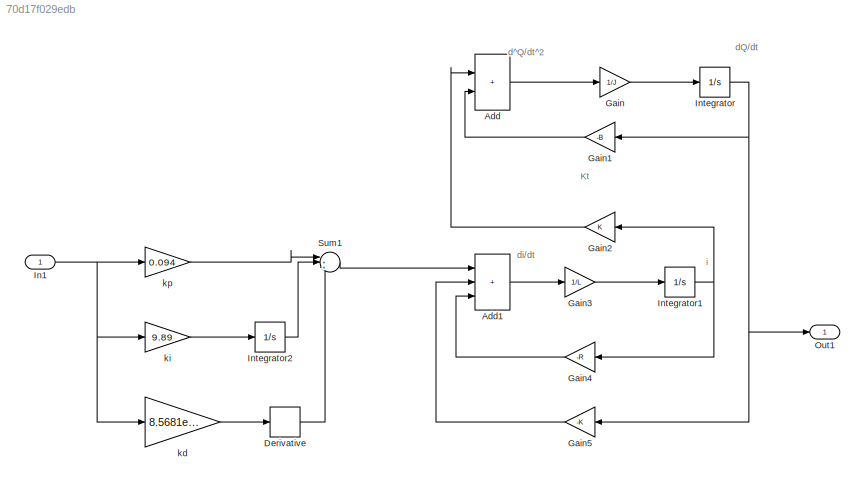
MODEL slx_70d17f029edb
KIND model
CONFIG AbsTol = auto
CONFIG EnableMultiTasking = off
CONFIG FixedStep = auto
CONFIG MaxStep = auto
CONFIG MinStep = auto
CONFIG RelTol = 1e-3
CONFIG SampleTimeConstraint = Unconstrained
CONFIG Solver = VariableStepAuto
CONFIG SolverName = VariableStepAuto
CONFIG StartTime = 0.0
CONFIG StopTime = 10.0
BLOCK [Sum] Add
  IconShape = rectangular
  Ports = [2, 1]
BLOCK [Sum] Add1
  IconShape = rectangular
  Inputs = +++
  Ports = [3, 1]
BLOCK [Derivative] Derivative
BLOCK [Gain] Gain
  Gain = 1/J
BLOCK [Gain] Gain1
  Gain = -B
  NameLocation = top
BLOCK [Gain] Gain2
  Gain = K
  NameLocation = top
BLOCK [Gain] Gain3
  Gain = 1/L
BLOCK [Gain] Gain4
  Gain = -R
  NameLocation = top
BLOCK [Gain] Gain5
  Gain = -K
  NameLocation = top
BLOCK [Inport] In1
  OutDataTypeStr = double
  PortDimensions = 1
  SampleTime = 0
  SamplingMode = Sample based
  SignalType = real
BLOCK [Integrator] Integrator
  Ports = [1, 1]
BLOCK [Integrator] Integrator1
  Ports = [1, 1]
BLOCK [Integrator] Integrator2
  Ports = [1, 1]
BLOCK [Outport] Out1
  OutDataTypeStr = double
  PortDimensions = 1
  SampleTime = 0
  SamplingMode = Sample based
  SignalType = real
BLOCK [Sum] Sum1
  Inputs = |+++
  Ports = [3, 1]
BLOCK [Gain] kd
  Gain = 8.5681e-05
BLOCK [Gain] ki
  Gain = 9.89
BLOCK [Gain] kp
  Gain = 0.094
ANNOTATION (root): Kt
ANNOTATION (root): dQ/dt
ANNOTATION (root): d^Q/dt^2
ANNOTATION (root): di/dt
ANNOTATION (root): i
LINE Add1:1 -> Gain3:1
LINE Add:1 -> Gain:1
LINE Derivative:1 -> Sum1:3
LINE Gain1:1 -> Add:2
LINE Gain2:1 -> Add:1
LINE Gain3:1 -> Integrator1:1
LINE Gain4:1 -> Add1:3
LINE Gain5:1 -> Add1:2
LINE Gain:1 -> Integrator:1
NET In1:1 -> kd:1, ki:1, kp:1
NET Integrator1:1 -> Gain2:1, Gain4:1
LINE Integrator2:1 -> Sum1:2
NET Integrator:1 -> Gain1:1, Gain5:1, Out1:1
LINE Sum1:1 -> Add1:1
LINE kd:1 -> Derivative:1
LINE ki:1 -> Integrator2:1
LINE kp:1 -> Sum1:1
note: NET lines group one-source signal fan-out (src -> all destinations, sorted); 1:1 wires keep LINE
